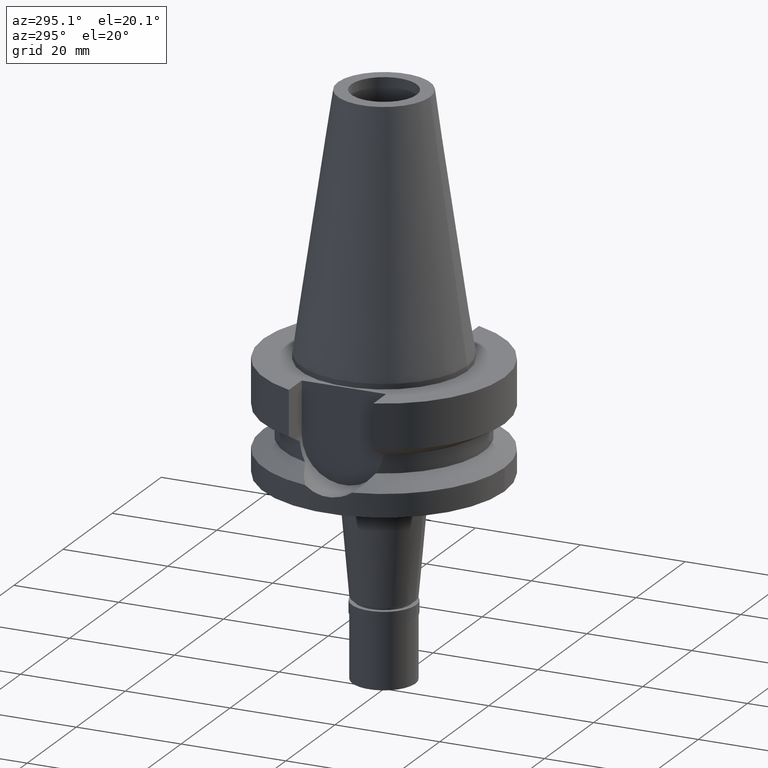
[diagram: clean part render]
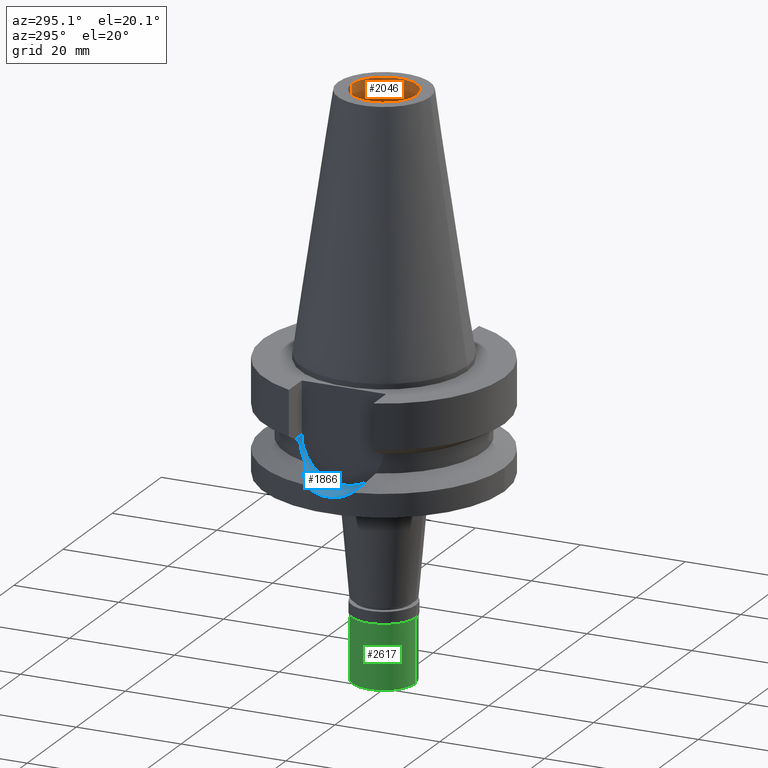
[diagram: same view with three faces highlighted in distinct colors, each labeled with its STEP entity id]
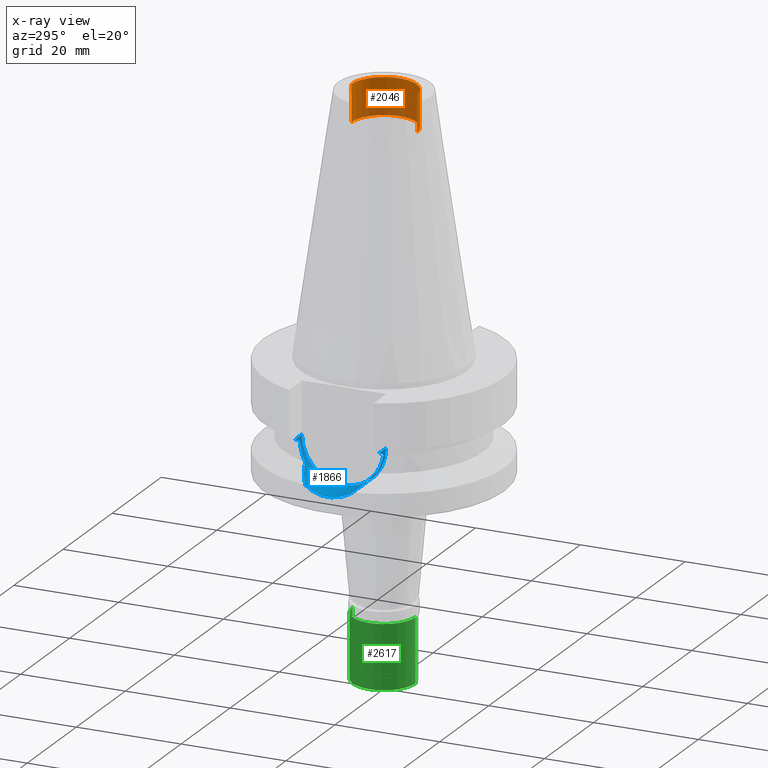
[diagram: x-ray of the same camera — body ghosted, the three highlighted faces saturated]
A machine part, auxiliary view with three faces highlighted in distinct colors.
The next image is the same camera in x-ray (body ghosted, the three faces saturated) — at least one of them is partly hidden behind the body in this view.
Their STEP definitions:

[orange] entity #2046 — the highlighted cylindrical surface (edge-blend (fillet) strip) has radius 6.25 mm, axis along (0, 0, -1).
#56 = DIRECTION ( 'NONE',  ( 0.0000000000000000000, 0.0000000000000000000, 1.000000000000000000 ) ) ;
#133 = VECTOR ( 'NONE', #56, 1000.000000000000000 ) ;
#320 = VERTEX_POINT ( 'NONE', #825 ) ;
#435 = VECTOR ( 'NONE', #573, 1000.000000000000000 ) ;
#559 = CYLINDRICAL_SURFACE ( 'NONE', #1400, 6.250000000000000000 ) ;
#573 = DIRECTION ( 'NONE',  ( 0.0000000000000000000, 0.0000000000000000000, 1.000000000000000000 ) ) ;
#651 = DIRECTION ( 'NONE',  ( 0.0000000000000000000, 1.000000000000000000, 0.0000000000000000000 ) ) ;
#807 = DIRECTION ( 'NONE',  ( 0.0000000000000000000, 0.0000000000000000000, 1.000000000000000000 ) ) ;
#816 = CIRCLE ( 'NONE', #1928, 6.250000000000000000 ) ;
#825 = CARTESIAN_POINT ( 'NONE',  ( 0.0000000000000000000, 6.250000000000000000, 41.39999999999999858 ) ) ;
#922 = DIRECTION ( 'NONE',  ( 0.0000000000000000000, 0.0000000000000000000, -1.000000000000000000 ) ) ;
#1014 = AXIS2_PLACEMENT_3D ( 'NONE', #2742, #922, #651 ) ;
#1038 = CARTESIAN_POINT ( 'NONE',  ( 0.0000000000000000000, 1.881302412850000052E-14, 48.39999999999999858 ) ) ;
#1166 = CIRCLE ( 'NONE', #1014, 6.250000000000000000 ) ;
#1169 = ORIENTED_EDGE ( 'NONE', *, *, #2692, .F. ) ;
#1181 = CARTESIAN_POINT ( 'NONE',  ( 0.0000000000000000000, 6.250000000000000000, 48.39999999999999858 ) ) ;
#1261 = VERTEX_POINT ( 'NONE', #1181 ) ;
#1400 = AXIS2_PLACEMENT_3D ( 'NONE', #1480, #1667, #2395 ) ;
#1480 = CARTESIAN_POINT ( 'NONE',  ( 0.0000000000000000000, 1.881302412850000052E-14, 53.62000000000000455 ) ) ;
#1537 = ORIENTED_EDGE ( 'NONE', *, *, #2374, .T. ) ;
#1667 = DIRECTION ( 'NONE',  ( 0.0000000000000000000, 0.0000000000000000000, -1.000000000000000000 ) ) ;
#1880 = LINE ( 'NONE', #2819, #133 ) ;
#1896 = VERTEX_POINT ( 'NONE', #2354 ) ;
#1928 = AXIS2_PLACEMENT_3D ( 'NONE', #1038, #807, #2449 ) ;
#1990 = CARTESIAN_POINT ( 'NONE',  ( 0.0000000000000000000, -6.250000000000000000, 48.39999999999999858 ) ) ;
#2046 = ADVANCED_FACE ( 'NONE', ( #2850 ), #559, .F. ) ;
#2096 = CARTESIAN_POINT ( 'NONE',  ( 0.0000000000000000000, 6.250000000000000000, 41.39999999999999858 ) ) ;
#2119 = ORIENTED_EDGE ( 'NONE', *, *, #2553, .T. ) ;
#2154 = EDGE_CURVE ( 'NONE', #1896, #2414, #1880, .T. ) ;
#2177 = LINE ( 'NONE', #2096, #435 ) ;
#2354 = CARTESIAN_POINT ( 'NONE',  ( 0.0000000000000000000, -6.250000000000000000, 41.39999999999999858 ) ) ;
#2374 = EDGE_CURVE ( 'NONE', #2414, #1261, #816, .T. ) ;
#2395 = DIRECTION ( 'NONE',  ( 0.0000000000000000000, -1.000000000000000000, 0.0000000000000000000 ) ) ;
#2414 = VERTEX_POINT ( 'NONE', #1990 ) ;
#2449 = DIRECTION ( 'NONE',  ( 0.0000000000000000000, -1.000000000000000000, 0.0000000000000000000 ) ) ;
#2553 = EDGE_CURVE ( 'NONE', #320, #1896, #1166, .T. ) ;
#2676 = EDGE_LOOP ( 'NONE', ( #2119, #2873, #1537, #1169 ) ) ;
#2692 = EDGE_CURVE ( 'NONE', #320, #1261, #2177, .T. ) ;
#2742 = CARTESIAN_POINT ( 'NONE',  ( 0.0000000000000000000, 1.881302412850000052E-14, 41.39999999999999858 ) ) ;
#2819 = CARTESIAN_POINT ( 'NONE',  ( 0.0000000000000000000, -6.250000000000000000, 41.39999999999999858 ) ) ;
#2850 = FACE_OUTER_BOUND ( 'NONE', #2676, .T. ) ;
#2873 = ORIENTED_EDGE ( 'NONE', *, *, #2154, .T. ) ;

[blue] entity #1866 — the highlighted cylindrical surface (partial cylindrical patch) has radius 8.05 mm, axis along (-1, 0, 0).
#5 = CARTESIAN_POINT ( 'NONE',  ( -22.95934934517446990, -1.378459520448282349, -18.88353401140011556 ) ) ;
#20 = CARTESIAN_POINT ( 'NONE',  ( -18.96736186712000105, 8.050001278060001653, -10.94999977536999936 ) ) ;
#31 = DIRECTION ( 'NONE',  ( -1.000000000000000000, 0.0000000000000000000, 0.0000000000000000000 ) ) ;
#92 = CARTESIAN_POINT ( 'NONE',  ( -22.55786346208000026, -4.488072640470000430, -17.63279163029000074 ) ) ;
#114 = CARTESIAN_POINT ( 'NONE',  ( -18.80334444884988443, -6.436015651914563485, -15.82158394262826029 ) ) ;
#123 = LINE ( 'NONE', #1270, #765 ) ;
#127 = CARTESIAN_POINT ( 'NONE',  ( -17.41029288300902422, 7.608179589641950180, -13.58035844438667716 ) ) ;
#137 = CARTESIAN_POINT ( 'NONE',  ( -21.45667660846539349, -5.196224577241975062, -17.09964204940527566 ) ) ;
#184 = B_SPLINE_CURVE_WITH_KNOTS ( 'NONE', 3,
 ( #446, #1375, #2536, #217, #876, #1799, #2927, #1145, #859, #1781, #640, #711, #245, #2330, #259 ),
 .UNSPECIFIED., .F., .F.,
 ( 4, 2, 2, 1, 1, 1, 2, 2, 4 ),
 ( 0.0000000000000000000, 0.2500000000000255906, 0.3750000000000384137, 0.4375000000000441314, 0.4687500000000467404, 0.4843750000000480727, 0.4921875000000485167, 0.5000000000000488498, 1.000000000000000000 ),
 .UNSPECIFIED. ) ;
#204 = CARTESIAN_POINT ( 'NONE',  ( -19.47239669501459147, 6.152218793802964214, -16.14359241836038450 ) ) ;
#217 = CARTESIAN_POINT ( 'NONE',  ( -17.53683850616956974, -7.312769253788782287, -14.31902481028560814 ) ) ;
#225 = CARTESIAN_POINT ( 'NONE',  ( -22.88130279756130392, 2.334968719027199935, -18.65396397036791853 ) ) ;
#227 = CARTESIAN_POINT ( 'NONE',  ( -18.77446331599541551, 6.424695128257428500, -15.80886670823929130 ) ) ;
#233 = ORIENTED_EDGE ( 'NONE', *, *, #1851, .T. ) ;
#241 = CYLINDRICAL_SURFACE ( 'NONE', #1007, 8.050000000000000711 ) ;
#245 = CARTESIAN_POINT ( 'NONE',  ( -17.32791110613037233, -7.797407457914789397, -13.04850003617055876 ) ) ;
#259 = CARTESIAN_POINT ( 'NONE',  ( -17.23531622822000386, -7.996491147957000223, -11.87660607717000083 ) ) ;
#274 = CARTESIAN_POINT ( 'NONE',  ( -22.92290420593992550, 1.923070217223366685, -18.77739314737642928 ) ) ;
#322 = CARTESIAN_POINT ( 'NONE',  ( -17.75736593456000278, 6.758398853743999624, -15.32339055352999857 ) ) ;
#333 = VECTOR ( 'NONE', #1629, 1000.000000000000114 ) ;
#336 = B_SPLINE_CURVE_WITH_KNOTS ( 'NONE', 3,
 ( #2520, #2565, #2309, #2577 ),
 .UNSPECIFIED., .F., .F.,
 ( 4, 4 ),
 ( 0.0000000000000000000, 1.000000000000000000 ),
 .UNSPECIFIED. ) ;
#341 = CARTESIAN_POINT ( 'NONE',  ( -21.19676226405094255, -5.342561612467673804, -16.97401915001826112 ) ) ;
#363 = CARTESIAN_POINT ( 'NONE',  ( -17.75736593456000278, 6.758398853743999624, -15.32339055352999857 ) ) ;
#380 = CIRCLE ( 'NONE', #2074, 8.050000000000000711 ) ;
#413 = CARTESIAN_POINT ( 'NONE',  ( -21.31277442275465361, 5.302222140296099617, -17.02961818801928118 ) ) ;
#419 = CARTESIAN_POINT ( 'NONE',  ( -17.23531135277999837, 7.996501749842999551, -11.87660739337000138 ) ) ;
#446 = CARTESIAN_POINT ( 'NONE',  ( -17.75736593456000278, -6.758398853743999624, -15.32339055352999857 ) ) ;
#457 = CARTESIAN_POINT ( 'NONE',  ( -22.55786346208000026, 4.488072640470000430, -17.63279163029000074 ) ) ;
#469 = ORIENTED_EDGE ( 'NONE', *, *, #2517, .T. ) ;
#486 = CARTESIAN_POINT ( 'NONE',  ( -22.86794343888607628, 2.462635580219702192, -18.61430130014867146 ) ) ;
#494 = ORIENTED_EDGE ( 'NONE', *, *, #886, .T. ) ;
#510 = DIRECTION ( 'NONE',  ( 0.0000000000000000000, 0.0000000000000000000, -1.000000000000000000 ) ) ;
#524 = VERTEX_POINT ( 'NONE', #1670 ) ;
#537 = CARTESIAN_POINT ( 'NONE',  ( -22.55786346208000026, 4.488072640470000430, -17.63279163029000074 ) ) ;
#542 = B_SPLINE_CURVE_WITH_KNOTS ( 'NONE', 3,
 ( #2910, #934, #710, #1191, #2080, #2567, #2342, #486, #2298, #1812, #225, #274, #2094, #662, #1178, #1587, #1158, #5, #2654, #2118, #2356, #1710, #2438, #571, #798, #2872, #2138, #1298 ),
 .UNSPECIFIED., .F., .F.,
 ( 4, 2, 2, 1, 1, 2, 2, 2, 2, 2, 2, 1, 1, 2, 2, 4 ),
 ( 0.0000000000000000000, 0.1250000000000041078, 0.1875000000000061617, 0.2187500000000072442, 0.2343750000000077438, 0.2421875000000077438, 0.2500000000000077161, 0.3750000000000058842, 0.5000000000000039968, 0.6250000000000022204, 0.6875000000000012212, 0.7187500000000009992, 0.7343750000000007772, 0.7421875000000007772, 0.7500000000000006661, 1.000000000000000000 ),
 .UNSPECIFIED. ) ;
#553 = CARTESIAN_POINT ( 'NONE',  ( -22.55786346208000026, -4.488072640470000430, -17.63279163029000074 ) ) ;
#556 = B_SPLINE_CURVE_WITH_KNOTS ( 'NONE', 3,
 ( #553, #1927, #1295, #137, #341, #599, #2391, #1068, #1271, #833, #2887, #114, #2168 ),
 .UNSPECIFIED., .F., .F.,
 ( 4, 2, 1, 1, 1, 2, 2, 4 ),
 ( 0.0000000000000000000, 0.2500000000000046074, 0.3750000000000068834, 0.4375000000000081601, 0.4687500000000077716, 0.4843750000000075495, 0.5000000000000073275, 1.000000000000000000 ),
 .UNSPECIFIED. ) ;
#563 = EDGE_CURVE ( 'NONE', #2221, #2045, #542, .T. ) ;
#571 = CARTESIAN_POINT ( 'NONE',  ( -22.88481372749445342, -2.300171923785075734, -18.66442433885200103 ) ) ;
#584 = DIRECTION ( 'NONE',  ( 0.9999999999998816502, -4.791475824996909035E-07, -8.421487467950838188E-08 ) ) ;
#599 = CARTESIAN_POINT ( 'NONE',  ( -20.87809016600575163, -5.509149187570961281, -16.82019280980506792 ) ) ;
#640 = CARTESIAN_POINT ( 'NONE',  ( -17.42272085251618208, -7.579664040962679650, -13.66132223661188050 ) ) ;
#643 = CARTESIAN_POINT ( 'NONE',  ( -17.40050758142160703, 7.630565565654109150, -13.51508960571545792 ) ) ;
#655 = CARTESIAN_POINT ( 'NONE',  ( -17.61322740993510649, 7.137115851997467786, -14.73814199281767223 ) ) ;
#659 = VERTEX_POINT ( 'NONE', #719 ) ;
#662 = CARTESIAN_POINT ( 'NONE',  ( -22.99091311577705810, 0.7497282920703489673, -18.97473017847586263 ) ) ;
#664 = CARTESIAN_POINT ( 'NONE',  ( -16.29999999999999716, -8.050000000000000711, -10.94999999999999929 ) ) ;
#697 = CARTESIAN_POINT ( 'NONE',  ( -21.98236242656910022, 4.903603020385891575, -17.35372703684429752 ) ) ;
#710 = CARTESIAN_POINT ( 'NONE',  ( -22.69605003539111721, 3.742246043853503679, -18.08863916510864200 ) ) ;
#711 = CARTESIAN_POINT ( 'NONE',  ( -17.42163631456517336, -7.582155995879247712, -13.65434988440541098 ) ) ;
#719 = CARTESIAN_POINT ( 'NONE',  ( -17.23531135277999837, 7.996501749842999551, -11.87660739337000138 ) ) ;
#742 = VERTEX_POINT ( 'NONE', #1360 ) ;
#761 = B_SPLINE_CURVE_WITH_KNOTS ( 'NONE', 3,
 ( #2479, #2271, #227, #204, #1130, #2521, #1589, #2015, #2313, #2969, #1617, #413, #697, #457 ),
 .UNSPECIFIED., .F., .F.,
 ( 4, 2, 2, 1, 1, 2, 2, 4 ),
 ( 0.0000000000000000000, 0.2499999999999925615, 0.3749999999999894529, 0.4374999999999877875, 0.4687499999999866773, 0.4843749999999866773, 0.4999999999999867883, 1.000000000000000000 ),
 .UNSPECIFIED. ) ;
#765 = VECTOR ( 'NONE', #584, 1000.000000000000114 ) ;
#798 = CARTESIAN_POINT ( 'NONE',  ( -22.88222545004057906, -2.325754591110686054, -18.65674056899095135 ) ) ;
#833 = CARTESIAN_POINT ( 'NONE',  ( -20.57460043501277269, -5.660436629451136348, -16.67383269774620658 ) ) ;
#839 = CARTESIAN_POINT ( 'NONE',  ( -17.36640948863165690, 7.707982828529734043, -13.27282317180522497 ) ) ;
#851 = CARTESIAN_POINT ( 'NONE',  ( -17.23531135277999837, 7.996501749842999551, -11.87660739337000138 ) ) ;
#859 = CARTESIAN_POINT ( 'NONE',  ( -17.42911851123985301, -7.564954524495926869, -13.70217975917531561 ) ) ;
#873 = VERTEX_POINT ( 'NONE', #322 ) ;
#876 = CARTESIAN_POINT ( 'NONE',  ( -17.51072787951258647, -7.374839633770184477, -14.18046796375015894 ) ) ;
#881 = CARTESIAN_POINT ( 'NONE',  ( -17.27395772691942000, 7.913379800923309837, -12.45762674626553768 ) ) ;
#886 = EDGE_CURVE ( 'NONE', #2045, #2195, #556, .T. ) ;
#934 = CARTESIAN_POINT ( 'NONE',  ( -22.63189142322548264, 4.115994741208836238, -17.88267412433994608 ) ) ;
#935 = LINE ( 'NONE', #1953, #333 ) ;
#1007 = AXIS2_PLACEMENT_3D ( 'NONE', #2105, #31, #510 ) ;
#1023 = EDGE_LOOP ( 'NONE', ( #1042, #233, #2578, #2895, #2012, #1453, #1355, #469, #1777, #494 ) ) ;
#1042 = ORIENTED_EDGE ( 'NONE', *, *, #2587, .T. ) ;
#1057 = CARTESIAN_POINT ( 'NONE',  ( -17.50086807635499753, 7.400179108355296798, -14.16641331494730061 ) ) ;
#1068 = CARTESIAN_POINT ( 'NONE',  ( -20.64412634573683292, -5.626337910121369745, -16.70735073263218951 ) ) ;
#1076 = CARTESIAN_POINT ( 'NONE',  ( -17.38156622591650802, 7.673725377166795703, -13.38458314266559057 ) ) ;
#1103 = CARTESIAN_POINT ( 'NONE',  ( -17.72682657658894456, 8.027186145136633755, -11.61172868551800086 ) ) ;
#1130 = CARTESIAN_POINT ( 'NONE',  ( -19.69783119279237837, 6.059109199457633821, -16.25186335723757480 ) ) ;
#1145 = CARTESIAN_POINT ( 'NONE',  ( -17.43825996256373045, -7.543902337135691027, -13.75966030972775123 ) ) ;
#1158 = CARTESIAN_POINT ( 'NONE',  ( -22.98937116202574416, -0.7953693437727543669, -18.97024549781451341 ) ) ;
#1178 = CARTESIAN_POINT ( 'NONE',  ( -23.00039156857204148, 0.3574856676471701022, -19.00115234547198639 ) ) ;
#1191 = CARTESIAN_POINT ( 'NONE',  ( -22.77748393016982220, 3.194066890172995610, -18.34195206604390194 ) ) ;
#1270 = CARTESIAN_POINT ( 'NONE',  ( -18.96736186712000105, 8.050001278060001653, -10.94999977536999936 ) ) ;
#1271 = CARTESIAN_POINT ( 'NONE',  ( -20.59676382027462438, -5.649609233109317508, -16.68451665361391889 ) ) ;
#1295 = CARTESIAN_POINT ( 'NONE',  ( -21.95886107303331158, -4.899347350485252051, -17.34251783815127013 ) ) ;
#1298 = CARTESIAN_POINT ( 'NONE',  ( -22.55786346208000026, -4.488072640470000430, -17.63279163029000074 ) ) ;
#1355 = ORIENTED_EDGE ( 'NONE', *, *, #2867, .T. ) ;
#1360 = CARTESIAN_POINT ( 'NONE',  ( -16.29999999999999716, 8.050000000000000711, -10.94999999999999929 ) ) ;
#1375 = CARTESIAN_POINT ( 'NONE',  ( -17.68527465925047437, -6.947815190968204213, -15.03067689333788159 ) ) ;
#1453 = ORIENTED_EDGE ( 'NONE', *, *, #2714, .T. ) ;
#1566 = CARTESIAN_POINT ( 'NONE',  ( -17.41455400308252877, 7.598412036672739234, -13.60833259774256199 ) ) ;
#1587 = CARTESIAN_POINT ( 'NONE',  ( -22.99958106116201506, -0.4076252345886244854, -18.99876958054451848 ) ) ;
#1589 = CARTESIAN_POINT ( 'NONE',  ( -20.18613266281732876, 5.844317637651762709, -16.48670298190072359 ) ) ;
#1616 = FACE_OUTER_BOUND ( 'NONE', #1023, .T. ) ;
#1617 = CARTESIAN_POINT ( 'NONE',  ( -20.52523460775798725, 5.684392580775210924, -16.65003924639280442 ) ) ;
#1629 = DIRECTION ( 'NONE',  ( -0.9999999999976610932, 2.130144941413914950E-06, -3.746155858615855831E-07 ) ) ;
#1633 = CARTESIAN_POINT ( 'NONE',  ( -17.75736593456000278, -6.758398853743999624, -15.32339055352999857 ) ) ;
#1670 = CARTESIAN_POINT ( 'NONE',  ( -18.96738966519000158, -8.049994318072998922, -10.95000099924999937 ) ) ;
#1710 = CARTESIAN_POINT ( 'NONE',  ( -22.89669828391553708, -2.179393510332613193, -18.69965599748531915 ) ) ;
#1777 = ORIENTED_EDGE ( 'NONE', *, *, #563, .T. ) ;
#1781 = CARTESIAN_POINT ( 'NONE',  ( -17.42527060193284427, -7.573803216175218012, -13.67765102006518774 ) ) ;
#1799 = CARTESIAN_POINT ( 'NONE',  ( -17.47454244282645419, -7.459747681763411187, -13.97656327318397373 ) ) ;
#1807 = CARTESIAN_POINT ( 'NONE',  ( -17.41740973188557717, 7.591861673428670798, -13.62698225821515585 ) ) ;
#1812 = CARTESIAN_POINT ( 'NONE',  ( -22.87924166839712470, 2.355031409872806680, -18.64784598471522159 ) ) ;
#1825 = CARTESIAN_POINT ( 'NONE',  ( -16.29999999999999716, 1.981478521019999946E-14, -10.94999999999999929 ) ) ;
#1833 = EDGE_CURVE ( 'NONE', #2516, #742, #380, .T. ) ;
#1851 = EDGE_CURVE ( 'NONE', #2437, #524, #336, .T. ) ;
#1866 = ADVANCED_FACE ( 'NONE', ( #1616 ), #241, .F. ) ;
#1927 = CARTESIAN_POINT ( 'NONE',  ( -22.27012508373062261, -4.695829065381190937, -17.49326522005384987 ) ) ;
#1953 = CARTESIAN_POINT ( 'NONE',  ( -16.29999999999999716, -8.050000000000000711, -10.94999999999999929 ) ) ;
#1994 = CARTESIAN_POINT ( 'NONE',  ( -17.32020187217933938, 7.811452264630796449, -12.90108126107644360 ) ) ;
#2012 = ORIENTED_EDGE ( 'NONE', *, *, #2294, .F. ) ;
#2015 = CARTESIAN_POINT ( 'NONE',  ( -20.36919323589157926, 5.758961155479562777, -16.57485622183705587 ) ) ;
#2045 = VERTEX_POINT ( 'NONE', #92 ) ;
#2074 = AXIS2_PLACEMENT_3D ( 'NONE', #1825, #2116, #2780 ) ;
#2080 = CARTESIAN_POINT ( 'NONE',  ( -22.80216122451776783, 3.013364605578610966, -18.41714078195897031 ) ) ;
#2094 = CARTESIAN_POINT ( 'NONE',  ( -22.95216769459107198, 1.531412477254726623, -18.86284795593726216 ) ) ;
#2102 = B_SPLINE_CURVE_WITH_KNOTS ( 'NONE', 3,
 ( #20, #2442, #1103, #851 ),
 .UNSPECIFIED., .F., .F.,
 ( 4, 4 ),
 ( 0.0000000000000000000, 1.000000000000000000 ),
 .UNSPECIFIED. ) ;
#2105 = CARTESIAN_POINT ( 'NONE',  ( -16.29999999999999716, 1.981478521019999946E-14, -10.94999999999999929 ) ) ;
#2116 = DIRECTION ( 'NONE',  ( 1.000000000000000000, 0.0000000000000000000, 0.0000000000000000000 ) ) ;
#2118 = CARTESIAN_POINT ( 'NONE',  ( -22.92452651903381877, -1.864440089677216195, -18.78174785949467918 ) ) ;
#2138 = CARTESIAN_POINT ( 'NONE',  ( -22.70350920476323964, -3.756030839835060142, -18.12442102094972185 ) ) ;
#2168 = CARTESIAN_POINT ( 'NONE',  ( -17.75736593456000278, -6.758398853743999624, -15.32339055352999857 ) ) ;
#2195 = VERTEX_POINT ( 'NONE', #1633 ) ;
#2221 = VERTEX_POINT ( 'NONE', #537 ) ;
#2271 = CARTESIAN_POINT ( 'NONE',  ( -18.28033454906824318, 6.597213615141702903, -15.57247741610948744 ) ) ;
#2294 = EDGE_CURVE ( 'NONE', #2755, #742, #123, .T. ) ;
#2298 = CARTESIAN_POINT ( 'NONE',  ( -22.87476863916604231, 2.398004321994863464, -18.63456771832857939 ) ) ;
#2309 = CARTESIAN_POINT ( 'NONE',  ( -18.30334760937699201, -8.049999956192326778, -11.30291655530038852 ) ) ;
#2313 = CARTESIAN_POINT ( 'NONE',  ( -20.44663386631759749, 5.722123613952643240, -16.61216444187221342 ) ) ;
#2330 = CARTESIAN_POINT ( 'NONE',  ( -17.26628505277651371, -7.929743581424994581, -12.45264543981650007 ) ) ;
#2342 = CARTESIAN_POINT ( 'NONE',  ( -22.85120837653262882, 2.614614927543525091, -18.56452983984691940 ) ) ;
#2356 = CARTESIAN_POINT ( 'NONE',  ( -22.91242513727510755, -2.010000392866369445, -18.74615227865814759 ) ) ;
#2391 = CARTESIAN_POINT ( 'NONE',  ( -20.71489444292606663, -5.591349687157655346, -16.74147344818926797 ) ) ;
#2437 = VERTEX_POINT ( 'NONE', #2857 ) ;
#2438 = CARTESIAN_POINT ( 'NONE',  ( -22.88961350933834993, -2.251877145769033195, -18.67865985014247698 ) ) ;
#2442 = CARTESIAN_POINT ( 'NONE',  ( -18.30417674803561212, 8.050000009835176940, -11.30245975391281377 ) ) ;
#2479 = CARTESIAN_POINT ( 'NONE',  ( -17.75736593456000278, 6.758398853743999624, -15.32339055352999857 ) ) ;
#2516 = VERTEX_POINT ( 'NONE', #664 ) ;
#2517 = EDGE_CURVE ( 'NONE', #873, #2221, #761, .T. ) ;
#2520 = CARTESIAN_POINT ( 'NONE',  ( -17.23531622822000386, -7.996491147957000223, -11.87660607717000083 ) ) ;
#2521 = CARTESIAN_POINT ( 'NONE',  ( -20.02516799661616886, 5.916419191902271280, -16.40925807991647645 ) ) ;
#2536 = CARTESIAN_POINT ( 'NONE',  ( -17.62113139273918350, -7.108367418567802076, -14.74095000871269079 ) ) ;
#2565 = CARTESIAN_POINT ( 'NONE',  ( -17.72598979705365707, -8.027133611820948644, -11.61218201620178014 ) ) ;
#2567 = CARTESIAN_POINT ( 'NONE',  ( -22.83547616017225224, 2.746788174165855967, -18.51747442362376361 ) ) ;
#2577 = CARTESIAN_POINT ( 'NONE',  ( -18.96738966519000158, -8.049994318072998922, -10.95000099924999937 ) ) ;
#2578 = ORIENTED_EDGE ( 'NONE', *, *, #2600, .F. ) ;
#2587 = EDGE_CURVE ( 'NONE', #2195, #2437, #184, .T. ) ;
#2600 = EDGE_CURVE ( 'NONE', #2516, #524, #935, .T. ) ;
#2654 = CARTESIAN_POINT ( 'NONE',  ( -22.94689091153290050, -1.573058889710351904, -18.84731797892701266 ) ) ;
#2703 = CARTESIAN_POINT ( 'NONE',  ( -17.33753429444990601, 7.772924035876657811, -13.04956638904990385 ) ) ;
#2714 = EDGE_CURVE ( 'NONE', #2755, #659, #2102, .T. ) ;
#2719 = CARTESIAN_POINT ( 'NONE',  ( -17.41902886909257120, 7.588145056433591051, -13.63749496353912960 ) ) ;
#2755 = VERTEX_POINT ( 'NONE', #2892 ) ;
#2780 = DIRECTION ( 'NONE',  ( 0.0000000000000000000, 0.0000000000000000000, -1.000000000000000000 ) ) ;
#2857 = CARTESIAN_POINT ( 'NONE',  ( -17.23531622822000386, -7.996491147957000223, -11.87660607717000083 ) ) ;
#2867 = EDGE_CURVE ( 'NONE', #659, #873, #2884, .T. ) ;
#2872 = CARTESIAN_POINT ( 'NONE',  ( -22.81090950432876241, -3.020660139733617466, -18.44495556377373191 ) ) ;
#2884 = B_SPLINE_CURVE_WITH_KNOTS ( 'NONE', 3,
 ( #419, #2935, #881, #1994, #2703, #839, #1076, #643, #127, #1566, #1807, #2719, #1057, #655, #363 ),
 .UNSPECIFIED., .F., .F.,
 ( 4, 2, 2, 1, 1, 1, 2, 2, 4 ),
 ( 0.0000000000000000000, 0.2500000000000002220, 0.3749999999999996669, 0.4374999999999998335, 0.4687499999999991673, 0.4843749999999990008, 0.4921874999999995004, 0.5000000000000000000, 1.000000000000000000 ),
 .UNSPECIFIED. ) ;
#2887 = CARTESIAN_POINT ( 'NONE',  ( -19.73393100526599753, -6.068393768746462413, -16.26864371772614959 ) ) ;
#2892 = CARTESIAN_POINT ( 'NONE',  ( -18.96736186712000105, 8.050001278060001653, -10.94999977536999936 ) ) ;
#2895 = ORIENTED_EDGE ( 'NONE', *, *, #1833, .T. ) ;
#2910 = CARTESIAN_POINT ( 'NONE',  ( -22.55786346208000026, 4.488072640470000430, -17.63279163029000074 ) ) ;
#2927 = CARTESIAN_POINT ( 'NONE',  ( -17.45719485030821616, -7.500152504368278628, -13.87559139675905229 ) ) ;
#2935 = CARTESIAN_POINT ( 'NONE',  ( -17.25079912548185490, 7.963111191691059076, -12.16468723194747881 ) ) ;
#2969 = CARTESIAN_POINT ( 'NONE',  ( -20.49803564195905281, 5.697509328326771261, -16.63693170996330295 ) ) ;

[green] entity #2617 — the highlighted cylindrical surface (edge-blend (fillet) strip) has radius 6 mm, axis along (0, 0, 1).
#26 = VERTEX_POINT ( 'NONE', #308 ) ;
#67 = EDGE_CURVE ( 'NONE', #26, #1512, #344, .T. ) ;
#194 = AXIS2_PLACEMENT_3D ( 'NONE', #952, #1485, #2571 ) ;
#308 = CARTESIAN_POINT ( 'NONE',  ( 0.0000000000000000000, -6.000000000000000000, -2.299999999999999822 ) ) ;
#314 = DIRECTION ( 'NONE',  ( 0.0000000000000000000, 0.0000000000000000000, 1.000000000000000000 ) ) ;
#344 = CIRCLE ( 'NONE', #194, 6.000000000000000000 ) ;
#370 = DIRECTION ( 'NONE',  ( 0.0000000000000000000, 0.0000000000000000000, -1.000000000000000000 ) ) ;
#383 = CARTESIAN_POINT ( 'NONE',  ( 0.0000000000000000000, -6.000000000000000000, -2.299999999999999822 ) ) ;
#487 = DIRECTION ( 'NONE',  ( 0.0000000000000000000, 1.000000000000000000, 0.0000000000000000000 ) ) ;
#633 = VERTEX_POINT ( 'NONE', #1694 ) ;
#718 = CIRCLE ( 'NONE', #2406, 6.000000000000000000 ) ;
#940 = EDGE_CURVE ( 'NONE', #1512, #633, #1517, .T. ) ;
#952 = CARTESIAN_POINT ( 'NONE',  ( 0.0000000000000000000, 0.0000000000000000000, -2.299999999999999822 ) ) ;
#1044 = DIRECTION ( 'NONE',  ( 0.0000000000000000000, 0.0000000000000000000, 1.000000000000000000 ) ) ;
#1197 = EDGE_LOOP ( 'NONE', ( #1234, #2898, #1760, #2180 ) ) ;
#1206 = VECTOR ( 'NONE', #370, 1000.000000000000000 ) ;
#1234 = ORIENTED_EDGE ( 'NONE', *, *, #2620, .T. ) ;
#1341 = CARTESIAN_POINT ( 'NONE',  ( 0.0000000000000000000, -6.000000000000000000, -14.50000000000000000 ) ) ;
#1479 = FACE_OUTER_BOUND ( 'NONE', #1197, .T. ) ;
#1483 = CARTESIAN_POINT ( 'NONE',  ( 0.0000000000000000000, 6.000000000000000000, -2.299999999999999822 ) ) ;
#1485 = DIRECTION ( 'NONE',  ( 0.0000000000000000000, 0.0000000000000000000, -1.000000000000000000 ) ) ;
#1487 = DIRECTION ( 'NONE',  ( 0.0000000000000000000, 0.0000000000000000000, -1.000000000000000000 ) ) ;
#1512 = VERTEX_POINT ( 'NONE', #1483 ) ;
#1517 = LINE ( 'NONE', #2434, #1206 ) ;
#1694 = CARTESIAN_POINT ( 'NONE',  ( 0.0000000000000000000, 6.000000000000000000, -14.50000000000000000 ) ) ;
#1760 = ORIENTED_EDGE ( 'NONE', *, *, #67, .T. ) ;
#1861 = CARTESIAN_POINT ( 'NONE',  ( 0.0000000000000000000, 0.0000000000000000000, -15.22500000000000142 ) ) ;
#1877 = AXIS2_PLACEMENT_3D ( 'NONE', #1861, #314, #487 ) ;
#2180 = ORIENTED_EDGE ( 'NONE', *, *, #940, .T. ) ;
#2190 = DIRECTION ( 'NONE',  ( 0.0000000000000000000, 1.000000000000000000, 0.0000000000000000000 ) ) ;
#2196 = LINE ( 'NONE', #383, #2833 ) ;
#2333 = EDGE_CURVE ( 'NONE', #26, #2478, #2196, .T. ) ;
#2382 = CARTESIAN_POINT ( 'NONE',  ( 0.0000000000000000000, 0.0000000000000000000, -14.50000000000000000 ) ) ;
#2406 = AXIS2_PLACEMENT_3D ( 'NONE', #2382, #1044, #2190 ) ;
#2434 = CARTESIAN_POINT ( 'NONE',  ( 0.0000000000000000000, 6.000000000000000000, -2.299999999999999822 ) ) ;
#2478 = VERTEX_POINT ( 'NONE', #1341 ) ;
#2571 = DIRECTION ( 'NONE',  ( 0.0000000000000000000, -1.000000000000000000, 0.0000000000000000000 ) ) ;
#2617 = ADVANCED_FACE ( 'NONE', ( #1479 ), #2826, .T. ) ;
#2620 = EDGE_CURVE ( 'NONE', #633, #2478, #718, .T. ) ;
#2826 = CYLINDRICAL_SURFACE ( 'NONE', #1877, 6.000000000000000000 ) ;
#2833 = VECTOR ( 'NONE', #1487, 1000.000000000000000 ) ;
#2898 = ORIENTED_EDGE ( 'NONE', *, *, #2333, .F. ) ;